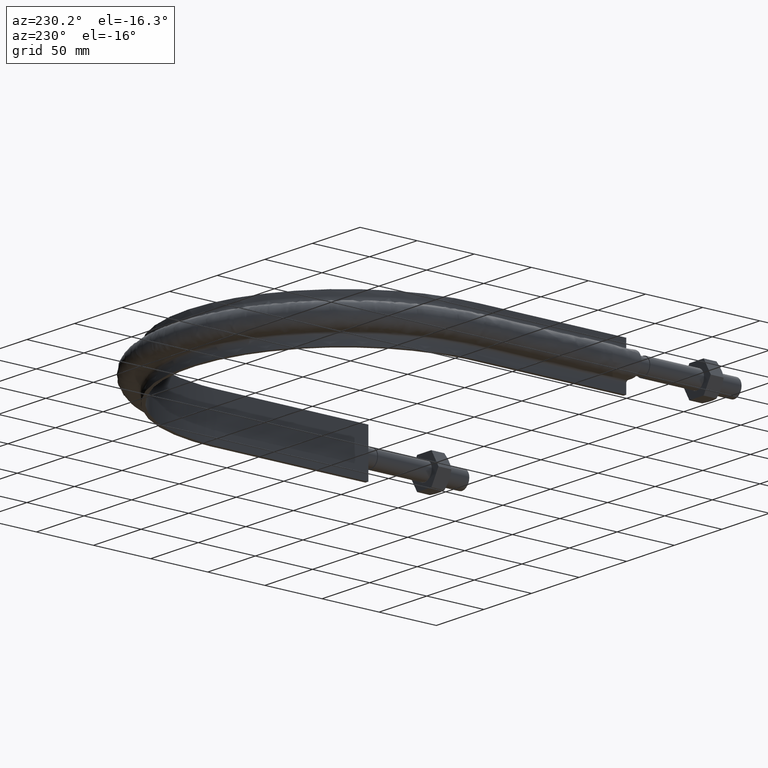
[diagram: clean part render]
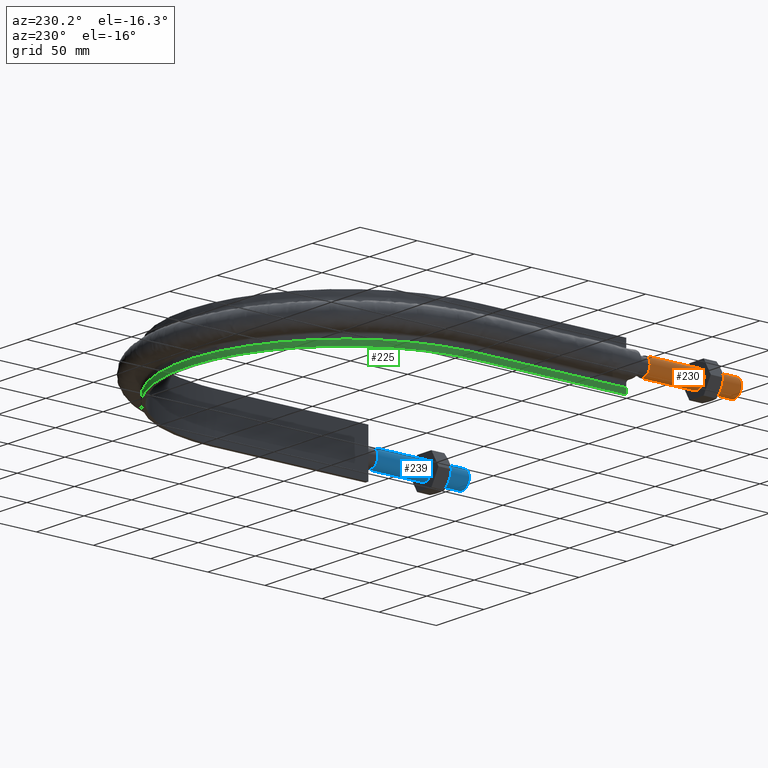
[diagram: same view with three faces highlighted in distinct colors, each labeled with its STEP entity id]
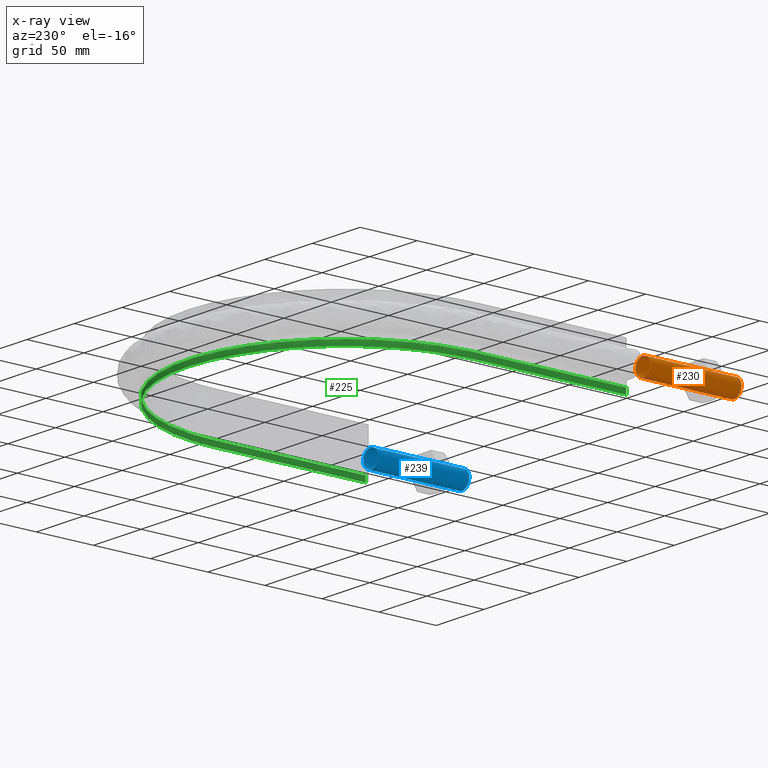
[diagram: x-ray of the same camera — body ghosted, the three highlighted faces saturated]
A machine part, auxiliary view with three faces highlighted in distinct colors.
The next image is the same camera in x-ray (body ghosted, the three faces saturated) — at least one of them is partly hidden behind the body in this view.
Their STEP definitions:

[orange] entity #230 — the highlighted cylindrical surface (bore or boss wall) has radius 7.75 mm, axis along (-0, -1, 0).
#230 = ADVANCED_FACE( '', ( #305, #306 ), #307, .T. );
#305 = FACE_OUTER_BOUND( '', #1175, .T. );
#306 = FACE_OUTER_BOUND( '', #1176, .T. );
#307 = CYLINDRICAL_SURFACE( '', #1177, 7.75000000000001 );
#1175 = EDGE_LOOP( '', ( #1754 ) );
#1176 = EDGE_LOOP( '', ( #1755 ) );
#1177 = AXIS2_PLACEMENT_3D( '', #1756, #1757, #1758 );
#1754 = ORIENTED_EDGE( '', *, *, #2080, .F. );
#1755 = ORIENTED_EDGE( '', *, *, #2081, .T. );
#1756 = CARTESIAN_POINT( '', ( -143.000000000000, 80.0000000000001, -2.44921270764475E-014 ) );
#1757 = DIRECTION( '', ( -2.44921270764476E-016, -1.00000000000000, 3.06151588455594E-016 ) );
#1758 = DIRECTION( '', ( 1.00000000000000, -2.44921270764476E-016, -5.47382212626882E-048 ) );
#2080 = EDGE_CURVE( '', #2216, #2216, #2217, .T. );
#2081 = EDGE_CURVE( '', #2218, #2218, #2219, .T. );
#2216 = VERTEX_POINT( '', #2834 );
#2217 = CIRCLE( '', #2835, 7.75000000000001 );
#2218 = VERTEX_POINT( '', #2836 );
#2219 = CIRCLE( '', #2837, 7.75000000000001 );
#2834 = CARTESIAN_POINT( '', ( -135.250000000000, 7.11248822424931E-014, 0.000000000000000 ) );
#2835 = AXIS2_PLACEMENT_3D( '', #3206, #3207, #3208 );
#2836 = CARTESIAN_POINT( '', ( -135.250000000000, 80.0000000000001, -2.44921270764475E-014 ) );
#2837 = AXIS2_PLACEMENT_3D( '', #3209, #3210, #3211 );
#3206 = CARTESIAN_POINT( '', ( -143.000000000000, 7.30230220909178E-014, 4.24221214785834E-047 ) );
#3207 = DIRECTION( '', ( -2.44921270764476E-016, -1.00000000000000, 3.06151588455594E-016 ) );
#3208 = DIRECTION( '', ( 1.00000000000000, -2.44921270764476E-016, -5.47382212626882E-048 ) );
#3209 = CARTESIAN_POINT( '', ( -143.000000000000, 80.0000000000001, -2.44921270764475E-014 ) );
#3210 = DIRECTION( '', ( -2.44921270764476E-016, -1.00000000000000, 3.06151588455594E-016 ) );
#3211 = DIRECTION( '', ( 1.00000000000000, -2.44921270764476E-016, -5.47382212626882E-048 ) );

[blue] entity #239 — the highlighted cylindrical surface (bore or boss wall) has radius 7.75 mm, axis along (-0, -1, 0).
#239 = ADVANCED_FACE( '', ( #325, #326 ), #327, .T. );
#325 = FACE_OUTER_BOUND( '', #1381, .T. );
#326 = FACE_OUTER_BOUND( '', #1382, .T. );
#327 = CYLINDRICAL_SURFACE( '', #1383, 7.75000000000001 );
#1381 = EDGE_LOOP( '', ( #1810 ) );
#1382 = EDGE_LOOP( '', ( #1811 ) );
#1383 = AXIS2_PLACEMENT_3D( '', #1812, #1813, #1814 );
#1810 = ORIENTED_EDGE( '', *, *, #2098, .F. );
#1811 = ORIENTED_EDGE( '', *, *, #2099, .T. );
#1812 = CARTESIAN_POINT( '', ( 143.000000000000, 80.0000000000000, -2.44921270764475E-014 ) );
#1813 = DIRECTION( '', ( -2.44921270764476E-016, -1.00000000000000, 3.06151588455594E-016 ) );
#1814 = DIRECTION( '', ( 1.00000000000000, -2.44921270764476E-016, -5.47382212626882E-048 ) );
#2098 = EDGE_CURVE( '', #2236, #2236, #2237, .T. );
#2099 = EDGE_CURVE( '', #2238, #2238, #2239, .T. );
#2236 = VERTEX_POINT( '', #2902 );
#2237 = CIRCLE( '', #2903, 7.75000000000001 );
#2238 = VERTEX_POINT( '', #2904 );
#2239 = CIRCLE( '', #2905, 7.75000000000001 );
#2902 = CARTESIAN_POINT( '', ( 150.750000000000, -1.94100107080847E-014, 0.000000000000000 ) );
#2903 = AXIS2_PLACEMENT_3D( '', #3212, #3213, #3214 );
#2904 = CARTESIAN_POINT( '', ( 150.750000000000, 80.0000000000000, -2.44921270764475E-014 ) );
#2905 = AXIS2_PLACEMENT_3D( '', #3215, #3216, #3217 );
#3212 = CARTESIAN_POINT( '', ( 143.000000000000, -1.75118708596600E-014, -6.41805644305019E-046 ) );
#3213 = DIRECTION( '', ( -2.44921270764476E-016, -1.00000000000000, 3.06151588455594E-016 ) );
#3214 = DIRECTION( '', ( 1.00000000000000, -2.44921270764476E-016, 8.28136315232281E-047 ) );
#3215 = CARTESIAN_POINT( '', ( 143.000000000000, 80.0000000000000, -2.44921270764475E-014 ) );
#3216 = DIRECTION( '', ( -2.44921270764476E-016, -1.00000000000000, 3.06151588455594E-016 ) );
#3217 = DIRECTION( '', ( 1.00000000000000, -2.44921270764476E-016, 8.28136315232281E-047 ) );

[green] entity #225 — the highlighted face is a SurfaceOfExtrusion surface.
#225 = ADVANCED_FACE( '', ( #292 ), #293, .T. );
#292 = FACE_OUTER_BOUND( '', #618, .T. );
#293 = SURFACE_OF_LINEAR_EXTRUSION( '', #619, #620 );
#618 = EDGE_LOOP( '', ( #1618, #1619, #1620, #1621 ) );
#619 = B_SPLINE_CURVE_WITH_KNOTS( '', 3, ( #1622, #1623, #1624, #1625, #1626, #1627, #1628, #1629, #1630, #1631, #1632, #1633, #1634, #1635, #1636, #1637, #1638, #1639, #1640, #1641, #1642, #1643, #1644, #1645, #1646, #1647, #1648, #1649, #1650, #1651, #1652, #1653, #1654, #1655, #1656, #1657, #1658, #1659, #1660, #1661, #1662, #1663, #1664, #1665, #1666, #1667, #1668, #1669, #1670, #1671, #1672, #1673, #1674, #1675, #1676, #1677, #1678, #1679, #1680, #1681, #1682, #1683, #1684, #1685, #1686, #1687, #1688, #1689, #1690, #1691, #1692, #1693, #1694, #1695, #1696, #1697, #1698, #1699, #1700, #1701, #1702, #1703, #1704, #1705, #1706, #1707, #1708, #1709, #1710, #1711, #1712, #1713, #1714 ), .UNSPECIFIED., .F., .F., ( 4, 1, 1, 2, 2, 2, 2, 2, 2, 2, 2, 2, 2, 2, 2, 2, 2, 2, 2, 2, 2, 2, 2, 2, 2, 2, 2, 2, 2, 2, 2, 2, 2, 2, 2, 2, 2, 2, 2, 2, 2, 2, 2, 2, 2, 2, 1, 4 ), ( 0.000000000000000, 0.125000000000002, 0.187500000000003, 0.191406250000003, 0.195312500000003, 0.203125000000002, 0.218750000000003, 0.250000000000003, 0.257812500000003, 0.265625000000003, 0.281250000000002, 0.312500000000002, 0.328125000000002, 0.343750000000002, 0.375000000000001, 0.390625000000001, 0.398437500000001, 0.406250000000001, 0.437500000000001, 0.453125000000001, 0.460937500000000, 0.468750000000000, 0.500000000000000, 0.515625000000000, 0.523437500000000, 0.531250000000000, 0.562500000000000, 0.578124999999999, 0.585937499999999, 0.593749999999999, 0.624999999999999, 0.656249999999999, 0.664062499999999, 0.671874999999999, 0.687499999999998, 0.718749999999998, 0.722656249999998, 0.726562499999998, 0.734374999999998, 0.749999999999998, 0.781249999999997, 0.789062499999997, 0.796874999999997, 0.804687499999997, 0.808593749999997, 0.812499999999996, 0.874999999999998, 1.00000000000000 ), .UNSPECIFIED. );
#620 = VECTOR( '', #1715, 1000.00000000000 );
#1618 = ORIENTED_EDGE( '', *, *, #2059, .T. );
#1619 = ORIENTED_EDGE( '', *, *, #2053, .T. );
#1620 = ORIENTED_EDGE( '', *, *, #2057, .F. );
#1621 = ORIENTED_EDGE( '', *, *, #2060, .F. );
#1622 = CARTESIAN_POINT( '', ( -136.950000000000, 89.5000000000001, -15.0000000000000 ) );
#1623 = CARTESIAN_POINT( '', ( -136.950000000000, 118.108351814219, -15.0000000000000 ) );
#1624 = CARTESIAN_POINT( '', ( -136.950000000000, 161.020879535546, -15.0000000000000 ) );
#1625 = CARTESIAN_POINT( '', ( -136.950000000000, 204.827418251068, -15.0000000000000 ) );
#1626 = CARTESIAN_POINT( '', ( -136.950000000000, 220.025605152372, -15.0000000000000 ) );
#1627 = CARTESIAN_POINT( '', ( -136.950000000000, 221.813627140760, -15.0000000000000 ) );
#1628 = CARTESIAN_POINT( '', ( -136.951346114390, 222.707775042567, -15.0000000000000 ) );
#1629 = CARTESIAN_POINT( '', ( -136.920609614582, 225.386681945511, -15.0000000000000 ) );
#1630 = CARTESIAN_POINT( '', ( -136.864816667886, 227.169029468828, -15.0000000000000 ) );
#1631 = CARTESIAN_POINT( '', ( -136.593146380454, 232.505464995944, -15.0000000000000 ) );
#1632 = CARTESIAN_POINT( '', ( -136.273189661635, 236.048967525582, -15.0000000000000 ) );
#1633 = CARTESIAN_POINT( '', ( -134.901802697672, 246.637621477265, -15.0000000000000 ) );
#1634 = CARTESIAN_POINT( '', ( -133.442512350631, 253.641291170172, -15.0000000000000 ) );
#1635 = CARTESIAN_POINT( '', ( -130.901383601594, 262.322953634697, -15.0000000000000 ) );
#1636 = CARTESIAN_POINT( '', ( -130.357015832177, 264.055610275365, -15.0000000000000 ) );
#1637 = CARTESIAN_POINT( '', ( -129.193847954833, 267.513353357775, -15.0000000000000 ) );
#1638 = CARTESIAN_POINT( '', ( -128.573476846170, 269.242131151953, -15.0000000000000 ) );
#1639 = CARTESIAN_POINT( '', ( -126.618174555290, 274.362723165805, -15.0000000000000 ) );
#1640 = CARTESIAN_POINT( '', ( -125.184490197968, 277.702984774707, -15.0000000000000 ) );
#1641 = CARTESIAN_POINT( '', ( -120.505328593637, 287.510336023068, -15.0000000000000 ) );
#1642 = CARTESIAN_POINT( '', ( -116.886061102882, 293.766429658881, -15.0000000000000 ) );
#1643 = CARTESIAN_POINT( '', ( -110.711856714430, 302.729863608688, -15.0000000000000 ) );
#1644 = CARTESIAN_POINT( '', ( -108.528201325971, 305.647880339849, -15.0000000000000 ) );
#1645 = CARTESIAN_POINT( '', ( -103.904407759561, 311.334716161009, -15.0000000000000 ) );
#1646 = CARTESIAN_POINT( '', ( -101.494535344133, 314.066402872892, -15.0000000000000 ) );
#1647 = CARTESIAN_POINT( '', ( -93.9768857717446, 321.932991567950, -15.0000000000000 ) );
#1648 = CARTESIAN_POINT( '', ( -88.5810092968209, 326.739345713163, -15.0000000000000 ) );
#1649 = CARTESIAN_POINT( '', ( -79.9242816112247, 333.306932196036, -15.0000000000000 ) );
#1650 = CARTESIAN_POINT( '', ( -76.9444034133837, 335.388585548725, -15.0000000000000 ) );
#1651 = CARTESIAN_POINT( '', ( -72.3295994596727, 338.345723108325, -15.0000000000000 ) );
#1652 = CARTESIAN_POINT( '', ( -70.7649027135216, 339.304967513353, -15.0000000000000 ) );
#1653 = CARTESIAN_POINT( '', ( -67.6140063459477, 341.151291429898, -15.0000000000000 ) );
#1654 = CARTESIAN_POINT( '', ( -66.0248395654166, 342.040393152112, -15.0000000000000 ) );
#1655 = CARTESIAN_POINT( '', ( -58.0112237793678, 346.317614365294, -15.0000000000000 ) );
#1656 = CARTESIAN_POINT( '', ( -51.3838695117621, 349.201965048637, -15.0000000000000 ) );
#1657 = CARTESIAN_POINT( '', ( -41.1199306990064, 352.726783518546, -15.0000000000000 ) );
#1658 = CARTESIAN_POINT( '', ( -37.6449536795551, 353.768486983704, -15.0000000000000 ) );
#1659 = CARTESIAN_POINT( '', ( -32.3508572250080, 355.128370680882, -15.0000000000000 ) );
#1660 = CARTESIAN_POINT( '', ( -30.5711219683573, 355.548134877370, -15.0000000000000 ) );
#1661 = CARTESIAN_POINT( '', ( -26.9898806015858, 356.317593884026, -15.0000000000000 ) );
#1662 = CARTESIAN_POINT( '', ( -25.1975634552110, 356.665375332186, -15.0000000000000 ) );
#1663 = CARTESIAN_POINT( '', ( -16.2276412077899, 358.222717729931, -15.0000000000000 ) );
#1664 = CARTESIAN_POINT( '', ( -9.02523440856736, 358.892110978601, -15.0000000000000 ) );
#1665 = CARTESIAN_POINT( '', ( 1.81786937464440, 359.036051739121, -15.0000000000000 ) );
#1666 = CARTESIAN_POINT( '', ( 5.43888442947024, 358.939261125259, -15.0000000000000 ) );
#1667 = CARTESIAN_POINT( '', ( 10.8804397715058, 358.575567070277, -15.0000000000000 ) );
#1668 = CARTESIAN_POINT( '', ( 12.6959650568691, 358.417887683017, -15.0000000000000 ) );
#1669 = CARTESIAN_POINT( '', ( 16.3304010621810, 358.028795956680, -15.0000000000000 ) );
#1670 = CARTESIAN_POINT( '', ( 18.1509778757328, 357.796964222104, -15.0000000000000 ) );
#1671 = CARTESIAN_POINT( '', ( 27.1816143256275, 356.463826032725, -15.0000000000000 ) );
#1672 = CARTESIAN_POINT( '', ( 34.2390508622090, 354.839668956545, -15.0000000000000 ) );
#1673 = CARTESIAN_POINT( '', ( 44.5810778790186, 351.588595998648, -15.0000000000000 ) );
#1674 = CARTESIAN_POINT( '', ( 47.9874716560260, 350.368228980460, -15.0000000000000 ) );
#1675 = CARTESIAN_POINT( '', ( 53.0340989443394, 348.327522487613, -15.0000000000000 ) );
#1676 = CARTESIAN_POINT( '', ( 54.7057757971050, 347.612133002601, -15.0000000000000 ) );
#1677 = CARTESIAN_POINT( '', ( 58.0278931759406, 346.110472498891, -15.0000000000000 ) );
#1678 = CARTESIAN_POINT( '', ( 59.6804492387648, 345.323156348271, -15.0000000000000 ) );
#1679 = CARTESIAN_POINT( '', ( 67.8662269615211, 341.218943105620, -15.0000000000000 ) );
#1680 = CARTESIAN_POINT( '', ( 74.0672509269300, 337.457093171529, -15.0000000000000 ) );
#1681 = CARTESIAN_POINT( '', ( 85.8066697855656, 329.021264559786, -15.0000000000000 ) );
#1682 = CARTESIAN_POINT( '', ( 91.3450708111379, 324.347294323490, -15.0000000000000 ) );
#1683 = CARTESIAN_POINT( '', ( 97.8308624293475, 317.902999344751, -15.0000000000000 ) );
#1684 = CARTESIAN_POINT( '', ( 99.1063522438762, 316.583042958306, -15.0000000000000 ) );
#1685 = CARTESIAN_POINT( '', ( 101.590244963731, 313.906741637720, -15.0000000000000 ) );
#1686 = CARTESIAN_POINT( '', ( 102.801672903783, 312.547491271698, -15.0000000000000 ) );
#1687 = CARTESIAN_POINT( '', ( 106.346254323220, 308.407722078790, -15.0000000000000 ) );
#1688 = CARTESIAN_POINT( '', ( 108.589893323643, 305.565315081670, -15.0000000000000 ) );
#1689 = CARTESIAN_POINT( '', ( 114.970214089517, 296.795700236809, -15.0000000000000 ) );
#1690 = CARTESIAN_POINT( '', ( 118.759288976830, 290.628165305693, -15.0000000000000 ) );
#1691 = CARTESIAN_POINT( '', ( 122.482049801510, 283.316381079695, -15.0000000000000 ) );
#1692 = CARTESIAN_POINT( '', ( 122.888127373353, 282.498732064797, -15.0000000000000 ) );
#1693 = CARTESIAN_POINT( '', ( 123.684984798984, 280.852857558546, -15.0000000000000 ) );
#1694 = CARTESIAN_POINT( '', ( 124.076188679038, 280.023697389435, -15.0000000000000 ) );
#1695 = CARTESIAN_POINT( '', ( 125.223076035006, 277.527782870249, -15.0000000000000 ) );
#1696 = CARTESIAN_POINT( '', ( 125.951536386374, 275.853956327217, -15.0000000000000 ) );
#1697 = CARTESIAN_POINT( '', ( 128.029666807743, 270.803138776699, -15.0000000000000 ) );
#1698 = CARTESIAN_POINT( '', ( 129.272445179675, 267.396908032732, -15.0000000000000 ) );
#1699 = CARTESIAN_POINT( '', ( 132.586786070952, 257.064969568913, -15.0000000000000 ) );
#1700 = CARTESIAN_POINT( '', ( 134.247821790206, 250.026964115281, -15.0000000000000 ) );
#1701 = CARTESIAN_POINT( '', ( 135.630952375180, 241.039845429982, -15.0000000000000 ) );
#1702 = CARTESIAN_POINT( '', ( 135.872641992840, 239.232864972872, -15.0000000000000 ) );
#1703 = CARTESIAN_POINT( '', ( 136.284803757172, 235.599422844282, -15.0000000000000 ) );
#1704 = CARTESIAN_POINT( '', ( 136.455153129533, 233.772516640443, -15.0000000000000 ) );
#1705 = CARTESIAN_POINT( '', ( 136.721567786733, 230.123756924611, -15.0000000000000 ) );
#1706 = CARTESIAN_POINT( '', ( 136.818027802696, 228.298840221395, -15.0000000000000 ) );
#1707 = CARTESIAN_POINT( '', ( 136.907499245267, 225.560658472589, -15.0000000000000 ) );
#1708 = CARTESIAN_POINT( '', ( 136.928116262671, 224.647796719939, -15.0000000000000 ) );
#1709 = CARTESIAN_POINT( '', ( 136.950875956315, 222.821803321072, -15.0000000000000 ) );
#1710 = CARTESIAN_POINT( '', ( 136.950000000000, 221.908627575340, -15.0000000000000 ) );
#1711 = CARTESIAN_POINT( '', ( 136.950000000000, 206.384857445817, -15.0000000000000 ) );
#1712 = CARTESIAN_POINT( '', ( 136.950000000000, 162.553035903636, -15.0000000000000 ) );
#1713 = CARTESIAN_POINT( '', ( 136.950000000000, 118.721214361455, -15.0000000000000 ) );
#1714 = CARTESIAN_POINT( '', ( 136.950000000000, 89.5000000000000, -15.0000000000000 ) );
#1715 = DIRECTION( '', ( -7.49830360911069E-032, -3.06151588455594E-016, -1.00000000000000 ) );
#2053 = EDGE_CURVE( '', #2168, #2166, #2169, .T. );
#2057 = EDGE_CURVE( '', #2172, #2166, #2174, .T. );
#2059 = EDGE_CURVE( '', #2176, #2168, #2177, .T. );
#2060 = EDGE_CURVE( '', #2176, #2172, #2178, .T. );
#2166 = VERTEX_POINT( '', #2518 );
#2168 = VERTEX_POINT( '', #2521 );
#2169 = LINE( '', #2522, #2523 );
#2172 = VERTEX_POINT( '', #2558 );
#2174 = B_SPLINE_CURVE_WITH_KNOTS( '', 3, ( #2561, #2562, #2563, #2564, #2565, #2566, #2567, #2568, #2569, #2570, #2571, #2572, #2573, #2574, #2575, #2576, #2577, #2578, #2579, #2580, #2581, #2582, #2583, #2584, #2585, #2586, #2587, #2588, #2589, #2590, #2591, #2592, #2593, #2594, #2595, #2596, #2597, #2598, #2599, #2600, #2601, #2602, #2603, #2604, #2605, #2606, #2607, #2608, #2609, #2610, #2611, #2612, #2613, #2614, #2615, #2616, #2617, #2618, #2619, #2620, #2621, #2622, #2623, #2624, #2625, #2626, #2627, #2628, #2629, #2630, #2631, #2632, #2633, #2634, #2635, #2636, #2637, #2638, #2639, #2640, #2641, #2642, #2643, #2644, #2645, #2646, #2647, #2648, #2649, #2650, #2651, #2652, #2653, #2654, #2655, #2656, #2657, #2658, #2659, #2660, #2661, #2662, #2663, #2664, #2665, #2666, #2667 ), .UNSPECIFIED., .F., .F., ( 4, 1, 2, 2, 2, 2, 2, 2, 2, 2, 2, 2, 2, 2, 2, 2, 2, 2, 2, 2, 2, 2, 2, 2, 2, 2, 2, 2, 2, 2, 2, 2, 2, 2, 2, 1, 2, 2, 2, 2, 2, 2, 2, 2, 2, 2, 2, 2, 2, 2, 2, 2, 2, 1, 4 ), ( 0.000000000000000, 0.0874256844655809, 0.131138526698371, 0.133870579337921, 0.136602631977470, 0.142066737256569, 0.152994947814767, 0.174851368931162, 0.180315474210261, 0.183047526849810, 0.185779579489360, 0.196707790047557, 0.218564211163953, 0.229492421722151, 0.232224474361700, 0.234956527001249, 0.240420632280348, 0.262277053396744, 0.273205263954942, 0.275937316594491, 0.278669369234041, 0.284133474513140, 0.305989895629536, 0.316918106187734, 0.322382211466832, 0.325114264106382, 0.327846316745931, 0.349702737862327, 0.360630948420525, 0.366095053699624, 0.368827106339173, 0.371559158978723, 0.393415580095118, 0.415272001211514, 0.418004053851063, 0.420736106490613, 0.426200211769712, 0.437128422327910, 0.458984843444305, 0.461716896083855, 0.464448948723404, 0.469913054002503, 0.480841264560702, 0.502697685677098, 0.508161790956197, 0.513625896235296, 0.524554106793494, 0.546410527909890, 0.551874633188989, 0.557338738468088, 0.562802843747187, 0.565534896386736, 0.568266949026286, 0.611979791259077, 0.699405475724660 ), .UNSPECIFIED. );
#2176 = VERTEX_POINT( '', #2670 );
#2177 = B_SPLINE_CURVE_WITH_KNOTS( '', 3, ( #2671, #2672, #2673, #2674, #2675, #2676, #2677, #2678, #2679, #2680, #2681, #2682, #2683, #2684, #2685, #2686, #2687, #2688, #2689, #2690, #2691, #2692, #2693, #2694, #2695, #2696, #2697, #2698, #2699, #2700, #2701, #2702, #2703, #2704, #2705, #2706, #2707, #2708, #2709, #2710, #2711, #2712, #2713, #2714, #2715, #2716, #2717, #2718, #2719, #2720, #2721, #2722, #2723, #2724, #2725, #2726, #2727, #2728, #2729, #2730, #2731, #2732, #2733, #2734, #2735, #2736, #2737, #2738, #2739, #2740, #2741, #2742, #2743, #2744, #2745, #2746, #2747, #2748, #2749, #2750, #2751, #2752, #2753, #2754, #2755, #2756, #2757, #2758, #2759, #2760, #2761, #2762, #2763 ), .UNSPECIFIED., .F., .F., ( 4, 1, 1, 2, 2, 2, 2, 2, 2, 2, 2, 2, 2, 2, 2, 2, 2, 2, 2, 2, 2, 2, 2, 2, 2, 2, 2, 2, 2, 2, 2, 2, 2, 2, 2, 2, 2, 2, 2, 2, 2, 2, 2, 2, 2, 2, 1, 4 ), ( 0.000000000000000, 0.125000000000002, 0.187500000000003, 0.191406250000003, 0.195312500000003, 0.203125000000002, 0.218750000000003, 0.250000000000003, 0.257812500000003, 0.265625000000003, 0.281250000000002, 0.312500000000002, 0.328125000000002, 0.343750000000002, 0.375000000000001, 0.390625000000001, 0.398437500000001, 0.406250000000001, 0.437500000000001, 0.453125000000001, 0.460937500000000, 0.468750000000000, 0.500000000000000, 0.515625000000000, 0.523437500000000, 0.531250000000000, 0.562500000000000, 0.578124999999999, 0.585937499999999, 0.593749999999999, 0.624999999999999, 0.656249999999999, 0.664062499999999, 0.671874999999999, 0.687499999999998, 0.718749999999998, 0.722656249999998, 0.726562499999998, 0.734374999999998, 0.749999999999998, 0.781249999999997, 0.789062499999997, 0.796874999999997, 0.804687499999997, 0.808593749999997, 0.812499999999996, 0.874999999999998, 1.00000000000000 ), .UNSPECIFIED. );
#2178 = LINE( '', #2764, #2765 );
#2518 = CARTESIAN_POINT( '', ( 136.950000000000, 89.5000000000000, -20.0000000000000 ) );
#2521 = CARTESIAN_POINT( '', ( 136.950000000000, 89.5000000000001, -15.0000000000000 ) );
#2522 = CARTESIAN_POINT( '', ( 136.950000000000, 89.5000000000000, -15.0000000000000 ) );
#2523 = VECTOR( '', #3147, 1000.00000000000 );
#2558 = CARTESIAN_POINT( '', ( -136.950000000000, 89.5000000000001, -20.0000000000000 ) );
#2561 = CARTESIAN_POINT( '', ( -136.950000000000, 89.5000000000001, -20.0000000000000 ) );
#2562 = CARTESIAN_POINT( '', ( -136.950000000000, 118.641900248097, -20.0000000000000 ) );
#2563 = CARTESIAN_POINT( '', ( -136.950000000000, 162.354750620242, -20.0000000000000 ) );
#2564 = CARTESIAN_POINT( '', ( -136.949999999999, 206.067600992388, -20.0000000000000 ) );
#2565 = CARTESIAN_POINT( '', ( -136.950000000000, 221.549235499189, -20.0000000000000 ) );
#2566 = CARTESIAN_POINT( '', ( -136.952005766823, 222.459921105955, -20.0000000000000 ) );
#2567 = CARTESIAN_POINT( '', ( -136.934979206279, 224.281279481058, -20.0000000000000 ) );
#2568 = CARTESIAN_POINT( '', ( -136.916553871832, 225.191952619810, -20.0000000000000 ) );
#2569 = CARTESIAN_POINT( '', ( -136.834753701177, 227.923955849783, -20.0000000000000 ) );
#2570 = CARTESIAN_POINT( '', ( -136.743599783762, 229.741272047869, -20.0000000000000 ) );
#2571 = CARTESIAN_POINT( '', ( -136.363495553162, 235.166484778741, -20.0000000000000 ) );
#2572 = CARTESIAN_POINT( '', ( -135.967488703048, 238.753870458482, -20.0000000000000 ) );
#2573 = CARTESIAN_POINT( '', ( -134.367551969832, 249.431038801507, -20.0000000000000 ) );
#2574 = CARTESIAN_POINT( '', ( -132.750553866293, 256.435595074193, -20.0000000000000 ) );
#2575 = CARTESIAN_POINT( '', ( -130.033489035348, 265.047725779312, -20.0000000000000 ) );
#2576 = CARTESIAN_POINT( '', ( -129.454886141077, 266.762891350756, -20.0000000000000 ) );
#2577 = CARTESIAN_POINT( '', ( -128.533317502652, 269.324567410144, -20.0000000000000 ) );
#2578 = CARTESIAN_POINT( '', ( -128.217212893149, 270.176620027550, -20.0000000000000 ) );
#2579 = CARTESIAN_POINT( '', ( -127.566740219219, 271.876957051043, -20.0000000000000 ) );
#2580 = CARTESIAN_POINT( '', ( -127.232398800357, 272.725180838080, -20.0000000000000 ) );
#2581 = CARTESIAN_POINT( '', ( -125.522807242117, 276.937555990539, -20.0000000000000 ) );
#2582 = CARTESIAN_POINT( '', ( -124.027890382201, 280.231015655087, -20.0000000000000 ) );
#2583 = CARTESIAN_POINT( '', ( -119.177772488664, 289.891903517809, -20.0000000000000 ) );
#2584 = CARTESIAN_POINT( '', ( -115.456951462218, 296.039688790397, -20.0000000000000 ) );
#2585 = CARTESIAN_POINT( '', ( -109.152951019674, 304.827169774973, -20.0000000000000 ) );
#2586 = CARTESIAN_POINT( '', ( -106.930050833056, 307.683299996954, -20.0000000000000 ) );
#2587 = CARTESIAN_POINT( '', ( -103.994442146738, 311.159156375513, -20.0000000000000 ) );
#2588 = CARTESIAN_POINT( '', ( -103.399206220785, 311.849830869772, -20.0000000000000 ) );
#2589 = CARTESIAN_POINT( '', ( -102.198265091280, 313.215468669272, -20.0000000000000 ) );
#2590 = CARTESIAN_POINT( '', ( -101.591920700934, 313.891203542515, -20.0000000000000 ) );
#2591 = CARTESIAN_POINT( '', ( -99.7553846231935, 315.897299082126, -20.0000000000000 ) );
#2592 = CARTESIAN_POINT( '', ( -98.5077032633166, 317.206566629283, -20.0000000000000 ) );
#2593 = CARTESIAN_POINT( '', ( -92.1539858603035, 323.613835991365, -20.0000000000000 ) );
#2594 = CARTESIAN_POINT( '', ( -86.7024715106644, 328.295179626355, -20.0000000000000 ) );
#2595 = CARTESIAN_POINT( '', ( -77.9891669345104, 334.670721620159, -20.0000000000000 ) );
#2596 = CARTESIAN_POINT( '', ( -74.9946413234102, 336.687249879646, -20.0000000000000 ) );
#2597 = CARTESIAN_POINT( '', ( -71.1363767592752, 339.069086719330, -20.0000000000000 ) );
#2598 = CARTESIAN_POINT( '', ( -70.3589796436392, 339.538526390093, -20.0000000000000 ) );
#2599 = CARTESIAN_POINT( '', ( -68.7925101038868, 340.463324926283, -20.0000000000000 ) );
#2600 = CARTESIAN_POINT( '', ( -68.0028416365707, 340.918994503187, -20.0000000000000 ) );
#2601 = CARTESIAN_POINT( '', ( -65.6265150792945, 342.258978990770, -20.0000000000000 ) );
#2602 = CARTESIAN_POINT( '', ( -64.0295971988785, 343.118030590867, -20.0000000000000 ) );
#2603 = CARTESIAN_POINT( '', ( -55.9824089667731, 347.244365806937, -20.0000000000000 ) );
#2604 = CARTESIAN_POINT( '', ( -49.3439512001586, 350.003826159946, -20.0000000000000 ) );
#2605 = CARTESIAN_POINT( '', ( -39.0910082445032, 353.346268295588, -20.0000000000000 ) );
#2606 = CARTESIAN_POINT( '', ( -35.6241551653338, 354.327634953124, -20.0000000000000 ) );
#2607 = CARTESIAN_POINT( '', ( -30.3492784457275, 355.598384851548, -20.0000000000000 ) );
#2608 = CARTESIAN_POINT( '', ( -28.5785337099424, 355.988365122303, -20.0000000000000 ) );
#2609 = CARTESIAN_POINT( '', ( -25.9034309357651, 356.522102744637, -20.0000000000000 ) );
#2610 = CARTESIAN_POINT( '', ( -25.0077107436098, 356.691611247168, -20.0000000000000 ) );
#2611 = CARTESIAN_POINT( '', ( -23.2172138820140, 357.012112274077, -20.0000000000000 ) );
#2612 = CARTESIAN_POINT( '', ( -22.3218036874265, 357.163270419115, -20.0000000000000 ) );
#2613 = CARTESIAN_POINT( '', ( -14.2616746941732, 358.442909678167, -20.0000000000000 ) );
#2614 = CARTESIAN_POINT( '', ( -7.08688203432076, 359.005162357811, -20.0000000000000 ) );
#2615 = CARTESIAN_POINT( '', ( 3.69045053044298, 358.997356057590, -20.0000000000000 ) );
#2616 = CARTESIAN_POINT( '', ( 7.28543714268401, 358.851850186395, -20.0000000000000 ) );
#2617 = CARTESIAN_POINT( '', ( 12.6817359396681, 358.418941046075, -20.0000000000000 ) );
#2618 = CARTESIAN_POINT( '', ( 14.4811397915295, 358.238800753868, -20.0000000000000 ) );
#2619 = CARTESIAN_POINT( '', ( 17.1812121944155, 357.914258555031, -20.0000000000000 ) );
#2620 = CARTESIAN_POINT( '', ( 18.0813968219132, 357.797056870438, -20.0000000000000 ) );
#2621 = CARTESIAN_POINT( '', ( 19.8820902819395, 357.544430686411, -20.0000000000000 ) );
#2622 = CARTESIAN_POINT( '', ( 20.7835449490342, 357.408813108142, -20.0000000000000 ) );
#2623 = CARTESIAN_POINT( '', ( 28.8670965883753, 356.111328549366, -20.0000000000000 ) );
#2624 = CARTESIAN_POINT( '', ( 35.8703135520915, 354.406800400233, -20.0000000000000 ) );
#2625 = CARTESIAN_POINT( '', ( 49.5251538415485, 349.933849723646, -20.0000000000000 ) );
#2626 = CARTESIAN_POINT( '', ( 56.1748232267781, 347.159514727644, -20.0000000000000 ) );
#2627 = CARTESIAN_POINT( '', ( 63.4492399728032, 343.413652350483, -20.0000000000000 ) );
#2628 = CARTESIAN_POINT( '', ( 64.2555412528454, 342.988297906815, -20.0000000000000 ) );
#2629 = CARTESIAN_POINT( '', ( 65.8566175141583, 342.123190874320, -20.0000000000000 ) );
#2630 = CARTESIAN_POINT( '', ( 68.2414579242943, 340.803750954364, -20.0000000000000 ) );
#2631 = CARTESIAN_POINT( '', ( 70.5763589403699, 339.419469626313, -20.0000000000000 ) );
#2632 = CARTESIAN_POINT( '', ( 75.1805857318878, 336.565763947980, -20.0000000000000 ) );
#2633 = CARTESIAN_POINT( '', ( 78.1627035340761, 334.549856366455, -20.0000000000000 ) );
#2634 = CARTESIAN_POINT( '', ( 86.8543207620351, 328.171383663371, -20.0000000000000 ) );
#2635 = CARTESIAN_POINT( '', ( 92.3077229888333, 323.476301431769, -20.0000000000000 ) );
#2636 = CARTESIAN_POINT( '', ( 98.0418417248362, 317.673728261731, -20.0000000000000 ) );
#2637 = CARTESIAN_POINT( '', ( 98.6733697505245, 317.021731690667, -20.0000000000000 ) );
#2638 = CARTESIAN_POINT( '', ( 99.9251833237715, 315.703141292685, -20.0000000000000 ) );
#2639 = CARTESIAN_POINT( '', ( 100.546136743132, 315.035752086242, -20.0000000000000 ) );
#2640 = CARTESIAN_POINT( '', ( 102.386046552852, 313.018007311473, -20.0000000000000 ) );
#2641 = CARTESIAN_POINT( '', ( 103.581668710411, 311.652670943042, -20.0000000000000 ) );
#2642 = CARTESIAN_POINT( '', ( 107.077810366191, 307.497593093923, -20.0000000000000 ) );
#2643 = CARTESIAN_POINT( '', ( 109.287409665400, 304.648655660814, -20.0000000000000 ) );
#2644 = CARTESIAN_POINT( '', ( 115.563663674949, 295.872310524432, -20.0000000000000 ) );
#2645 = CARTESIAN_POINT( '', ( 119.278439319524, 289.715802833909, -20.0000000000000 ) );
#2646 = CARTESIAN_POINT( '', ( 123.322162063996, 281.629687512524, -20.0000000000000 ) );
#2647 = CARTESIAN_POINT( '', ( 124.100657851927, 279.992770208306, -20.0000000000000 ) );
#2648 = CARTESIAN_POINT( '', ( 125.595826737249, 276.678684334615, -20.0000000000000 ) );
#2649 = CARTESIAN_POINT( '', ( 126.312684101753, 275.000403133016, -20.0000000000000 ) );
#2650 = CARTESIAN_POINT( '', ( 128.350441665645, 269.950404789008, -20.0000000000000 ) );
#2651 = CARTESIAN_POINT( '', ( 129.565681668815, 266.548771227839, -20.0000000000000 ) );
#2652 = CARTESIAN_POINT( '', ( 132.799201309552, 256.243261059050, -20.0000000000000 ) );
#2653 = CARTESIAN_POINT( '', ( 134.406489655847, 249.239070076666, -20.0000000000000 ) );
#2654 = CARTESIAN_POINT( '', ( 135.730368078417, 240.316580552525, -20.0000000000000 ) );
#2655 = CARTESIAN_POINT( '', ( 135.960596827438, 238.523650463590, -20.0000000000000 ) );
#2656 = CARTESIAN_POINT( '', ( 136.350715609651, 234.920622076930, -20.0000000000000 ) );
#2657 = CARTESIAN_POINT( '', ( 136.510773884774, 233.109390090220, -20.0000000000000 ) );
#2658 = CARTESIAN_POINT( '', ( 136.758613068842, 229.474281669835, -20.0000000000000 ) );
#2659 = CARTESIAN_POINT( '', ( 136.846031799769, 227.656639207721, -20.0000000000000 ) );
#2660 = CARTESIAN_POINT( '', ( 136.922369077726, 224.930043041103, -20.0000000000000 ) );
#2661 = CARTESIAN_POINT( '', ( 136.939052762000, 224.021156467251, -20.0000000000000 ) );
#2662 = CARTESIAN_POINT( '', ( 136.951967908155, 222.203333870088, -20.0000000000000 ) );
#2663 = CARTESIAN_POINT( '', ( 136.950000000000, 221.294402200345, -20.0000000000000 ) );
#2664 = CARTESIAN_POINT( '', ( 136.950000000000, 205.842644700995, -20.0000000000000 ) );
#2665 = CARTESIAN_POINT( '', ( 136.950000000000, 162.214152938121, -20.0000000000000 ) );
#2666 = CARTESIAN_POINT( '', ( 136.950000000000, 118.585661175248, -20.0000000000000 ) );
#2667 = CARTESIAN_POINT( '', ( 136.950000000000, 89.5000000000001, -20.0000000000000 ) );
#2670 = CARTESIAN_POINT( '', ( -136.950000000000, 89.5000000000001, -15.0000000000000 ) );
#2671 = CARTESIAN_POINT( '', ( -136.950000000000, 89.5000000000001, -15.0000000000000 ) );
#2672 = CARTESIAN_POINT( '', ( -136.950000000000, 118.108351814219, -15.0000000000000 ) );
#2673 = CARTESIAN_POINT( '', ( -136.950000000000, 161.020879535546, -15.0000000000000 ) );
#2674 = CARTESIAN_POINT( '', ( -136.950000000000, 204.827418251068, -15.0000000000000 ) );
#2675 = CARTESIAN_POINT( '', ( -136.950000000000, 220.025605152372, -15.0000000000000 ) );
#2676 = CARTESIAN_POINT( '', ( -136.950000000000, 221.813627140760, -15.0000000000000 ) );
#2677 = CARTESIAN_POINT( '', ( -136.951346114390, 222.707775042567, -15.0000000000000 ) );
#2678 = CARTESIAN_POINT( '', ( -136.920609614582, 225.386681945511, -15.0000000000000 ) );
#2679 = CARTESIAN_POINT( '', ( -136.864816667886, 227.169029468828, -15.0000000000000 ) );
#2680 = CARTESIAN_POINT( '', ( -136.593146380454, 232.505464995944, -15.0000000000000 ) );
#2681 = CARTESIAN_POINT( '', ( -136.273189661635, 236.048967525582, -15.0000000000000 ) );
#2682 = CARTESIAN_POINT( '', ( -134.901802697672, 246.637621477265, -15.0000000000000 ) );
#2683 = CARTESIAN_POINT( '', ( -133.442512350631, 253.641291170172, -15.0000000000000 ) );
#2684 = CARTESIAN_POINT( '', ( -130.901383601594, 262.322953634697, -15.0000000000000 ) );
#2685 = CARTESIAN_POINT( '', ( -130.357015832177, 264.055610275365, -15.0000000000000 ) );
#2686 = CARTESIAN_POINT( '', ( -129.193847954833, 267.513353357775, -15.0000000000000 ) );
#2687 = CARTESIAN_POINT( '', ( -128.573476846170, 269.242131151953, -15.0000000000000 ) );
#2688 = CARTESIAN_POINT( '', ( -126.618174555290, 274.362723165805, -15.0000000000000 ) );
#2689 = CARTESIAN_POINT( '', ( -125.184490197968, 277.702984774707, -15.0000000000000 ) );
#2690 = CARTESIAN_POINT( '', ( -120.505328593637, 287.510336023068, -15.0000000000000 ) );
#2691 = CARTESIAN_POINT( '', ( -116.886061102882, 293.766429658881, -15.0000000000000 ) );
#2692 = CARTESIAN_POINT( '', ( -110.711856714430, 302.729863608688, -15.0000000000000 ) );
#2693 = CARTESIAN_POINT( '', ( -108.528201325971, 305.647880339849, -15.0000000000000 ) );
#2694 = CARTESIAN_POINT( '', ( -103.904407759561, 311.334716161009, -15.0000000000000 ) );
#2695 = CARTESIAN_POINT( '', ( -101.494535344133, 314.066402872892, -15.0000000000000 ) );
#2696 = CARTESIAN_POINT( '', ( -93.9768857717446, 321.932991567950, -15.0000000000000 ) );
#2697 = CARTESIAN_POINT( '', ( -88.5810092968209, 326.739345713163, -15.0000000000000 ) );
#2698 = CARTESIAN_POINT( '', ( -79.9242816112247, 333.306932196036, -15.0000000000000 ) );
#2699 = CARTESIAN_POINT( '', ( -76.9444034133837, 335.388585548725, -15.0000000000000 ) );
#2700 = CARTESIAN_POINT( '', ( -72.3295994596727, 338.345723108325, -15.0000000000000 ) );
#2701 = CARTESIAN_POINT( '', ( -70.7649027135216, 339.304967513353, -15.0000000000000 ) );
#2702 = CARTESIAN_POINT( '', ( -67.6140063459477, 341.151291429898, -15.0000000000000 ) );
#2703 = CARTESIAN_POINT( '', ( -66.0248395654166, 342.040393152112, -15.0000000000000 ) );
#2704 = CARTESIAN_POINT( '', ( -58.0112237793678, 346.317614365294, -15.0000000000000 ) );
#2705 = CARTESIAN_POINT( '', ( -51.3838695117621, 349.201965048637, -15.0000000000000 ) );
#2706 = CARTESIAN_POINT( '', ( -41.1199306990064, 352.726783518546, -15.0000000000000 ) );
#2707 = CARTESIAN_POINT( '', ( -37.6449536795551, 353.768486983704, -15.0000000000000 ) );
#2708 = CARTESIAN_POINT( '', ( -32.3508572250080, 355.128370680882, -15.0000000000000 ) );
#2709 = CARTESIAN_POINT( '', ( -30.5711219683573, 355.548134877370, -15.0000000000000 ) );
#2710 = CARTESIAN_POINT( '', ( -26.9898806015858, 356.317593884026, -15.0000000000000 ) );
#2711 = CARTESIAN_POINT( '', ( -25.1975634552110, 356.665375332186, -15.0000000000000 ) );
#2712 = CARTESIAN_POINT( '', ( -16.2276412077899, 358.222717729931, -15.0000000000000 ) );
#2713 = CARTESIAN_POINT( '', ( -9.02523440856736, 358.892110978601, -15.0000000000000 ) );
#2714 = CARTESIAN_POINT( '', ( 1.81786937464440, 359.036051739121, -15.0000000000000 ) );
#2715 = CARTESIAN_POINT( '', ( 5.43888442947024, 358.939261125259, -15.0000000000000 ) );
#2716 = CARTESIAN_POINT( '', ( 10.8804397715058, 358.575567070277, -15.0000000000000 ) );
#2717 = CARTESIAN_POINT( '', ( 12.6959650568691, 358.417887683017, -15.0000000000000 ) );
#2718 = CARTESIAN_POINT( '', ( 16.3304010621810, 358.028795956680, -15.0000000000000 ) );
#2719 = CARTESIAN_POINT( '', ( 18.1509778757328, 357.796964222104, -15.0000000000000 ) );
#2720 = CARTESIAN_POINT( '', ( 27.1816143256275, 356.463826032725, -15.0000000000000 ) );
#2721 = CARTESIAN_POINT( '', ( 34.2390508622090, 354.839668956545, -15.0000000000000 ) );
#2722 = CARTESIAN_POINT( '', ( 44.5810778790186, 351.588595998648, -15.0000000000000 ) );
#2723 = CARTESIAN_POINT( '', ( 47.9874716560260, 350.368228980460, -15.0000000000000 ) );
#2724 = CARTESIAN_POINT( '', ( 53.0340989443394, 348.327522487613, -15.0000000000000 ) );
#2725 = CARTESIAN_POINT( '', ( 54.7057757971050, 347.612133002601, -15.0000000000000 ) );
#2726 = CARTESIAN_POINT( '', ( 58.0278931759406, 346.110472498891, -15.0000000000000 ) );
#2727 = CARTESIAN_POINT( '', ( 59.6804492387648, 345.323156348271, -15.0000000000000 ) );
#2728 = CARTESIAN_POINT( '', ( 67.8662269615211, 341.218943105620, -15.0000000000000 ) );
#2729 = CARTESIAN_POINT( '', ( 74.0672509269300, 337.457093171529, -15.0000000000000 ) );
#2730 = CARTESIAN_POINT( '', ( 85.8066697855656, 329.021264559786, -15.0000000000000 ) );
#2731 = CARTESIAN_POINT( '', ( 91.3450708111379, 324.347294323490, -15.0000000000000 ) );
#2732 = CARTESIAN_POINT( '', ( 97.8308624293475, 317.902999344751, -15.0000000000000 ) );
#2733 = CARTESIAN_POINT( '', ( 99.1063522438762, 316.583042958306, -15.0000000000000 ) );
#2734 = CARTESIAN_POINT( '', ( 101.590244963731, 313.906741637720, -15.0000000000000 ) );
#2735 = CARTESIAN_POINT( '', ( 102.801672903783, 312.547491271698, -15.0000000000000 ) );
#2736 = CARTESIAN_POINT( '', ( 106.346254323220, 308.407722078790, -15.0000000000000 ) );
#2737 = CARTESIAN_POINT( '', ( 108.589893323643, 305.565315081670, -15.0000000000000 ) );
#2738 = CARTESIAN_POINT( '', ( 114.970214089517, 296.795700236809, -15.0000000000000 ) );
#2739 = CARTESIAN_POINT( '', ( 118.759288976830, 290.628165305693, -15.0000000000000 ) );
#2740 = CARTESIAN_POINT( '', ( 122.482049801510, 283.316381079695, -15.0000000000000 ) );
#2741 = CARTESIAN_POINT( '', ( 122.888127373353, 282.498732064797, -15.0000000000000 ) );
#2742 = CARTESIAN_POINT( '', ( 123.684984798984, 280.852857558546, -15.0000000000000 ) );
#2743 = CARTESIAN_POINT( '', ( 124.076188679038, 280.023697389435, -15.0000000000000 ) );
#2744 = CARTESIAN_POINT( '', ( 125.223076035006, 277.527782870249, -15.0000000000000 ) );
#2745 = CARTESIAN_POINT( '', ( 125.951536386374, 275.853956327217, -15.0000000000000 ) );
#2746 = CARTESIAN_POINT( '', ( 128.029666807743, 270.803138776699, -15.0000000000000 ) );
#2747 = CARTESIAN_POINT( '', ( 129.272445179675, 267.396908032732, -15.0000000000000 ) );
#2748 = CARTESIAN_POINT( '', ( 132.586786070952, 257.064969568913, -15.0000000000000 ) );
#2749 = CARTESIAN_POINT( '', ( 134.247821790206, 250.026964115281, -15.0000000000000 ) );
#2750 = CARTESIAN_POINT( '', ( 135.630952375180, 241.039845429982, -15.0000000000000 ) );
#2751 = CARTESIAN_POINT( '', ( 135.872641992840, 239.232864972872, -15.0000000000000 ) );
#2752 = CARTESIAN_POINT( '', ( 136.284803757172, 235.599422844282, -15.0000000000000 ) );
#2753 = CARTESIAN_POINT( '', ( 136.455153129533, 233.772516640443, -15.0000000000000 ) );
#2754 = CARTESIAN_POINT( '', ( 136.721567786733, 230.123756924611, -15.0000000000000 ) );
#2755 = CARTESIAN_POINT( '', ( 136.818027802696, 228.298840221395, -15.0000000000000 ) );
#2756 = CARTESIAN_POINT( '', ( 136.907499245267, 225.560658472589, -15.0000000000000 ) );
#2757 = CARTESIAN_POINT( '', ( 136.928116262671, 224.647796719939, -15.0000000000000 ) );
#2758 = CARTESIAN_POINT( '', ( 136.950875956315, 222.821803321072, -15.0000000000000 ) );
#2759 = CARTESIAN_POINT( '', ( 136.950000000000, 221.908627575340, -15.0000000000000 ) );
#2760 = CARTESIAN_POINT( '', ( 136.950000000000, 206.384857445817, -15.0000000000000 ) );
#2761 = CARTESIAN_POINT( '', ( 136.950000000000, 162.553035903636, -15.0000000000000 ) );
#2762 = CARTESIAN_POINT( '', ( 136.950000000000, 118.721214361455, -15.0000000000000 ) );
#2763 = CARTESIAN_POINT( '', ( 136.950000000000, 89.5000000000000, -15.0000000000000 ) );
#2764 = CARTESIAN_POINT( '', ( -136.950000000000, 89.5000000000001, -15.0000000000000 ) );
#2765 = VECTOR( '', #3151, 1000.00000000000 );
#3147 = DIRECTION( '', ( -7.49830360911069E-032, -3.06151588455594E-016, -1.00000000000000 ) );
#3151 = DIRECTION( '', ( -7.49830360911069E-032, -3.06151588455594E-016, -1.00000000000000 ) );